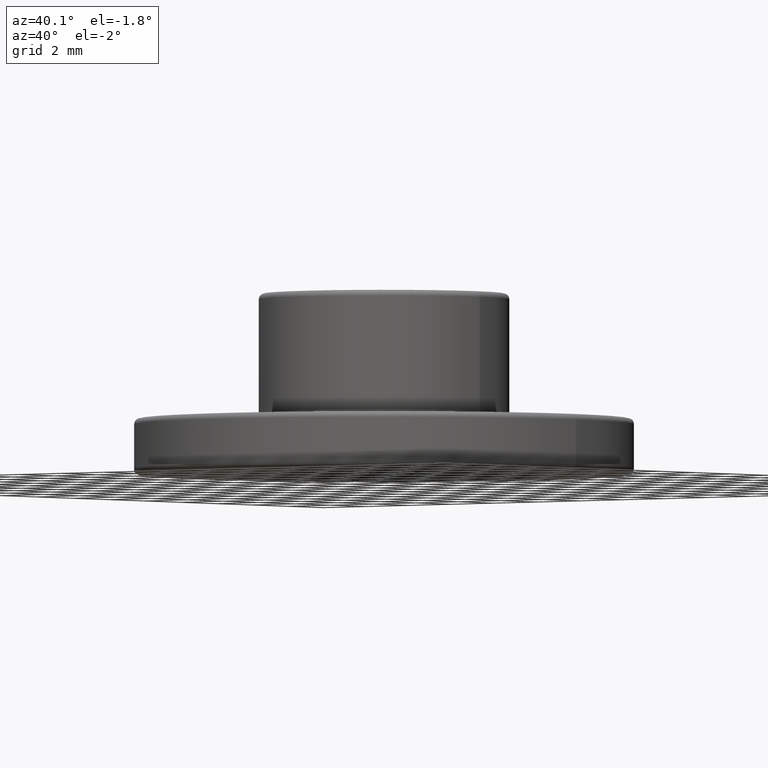
[diagram: clean part render]
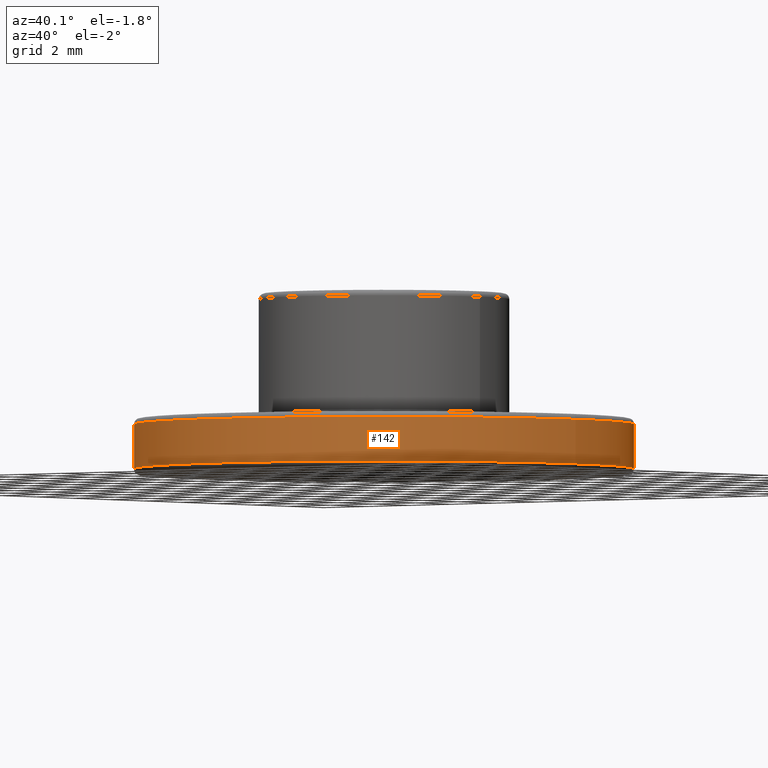
[diagram: same view with one face highlighted and labeled with its STEP entity id]
A machine part, auxiliary view. The second image highlights one B-rep face of the part: STEP entity #142.
In plain terms, the highlighted cylindrical surface (bore or boss wall) has radius 9 mm, axis along (0, 0, -1).
Its self-contained STEP definition (entity closure, byte-faithful):
#17=CYLINDRICAL_SURFACE('',#165,9.);
#28=FACE_BOUND('',#60,.T.);
#40=FACE_OUTER_BOUND('',#59,.T.);
#59=EDGE_LOOP('',(#119));
#60=EDGE_LOOP('',(#120));
#77=CIRCLE('',#164,9.);
#78=CIRCLE('',#166,9.);
#89=VERTEX_POINT('',#247);
#90=VERTEX_POINT('',#250);
#101=EDGE_CURVE('',#89,#89,#77,.T.);
#102=EDGE_CURVE('',#90,#90,#78,.T.);
#119=ORIENTED_EDGE('',*,*,#102,.F.);
#120=ORIENTED_EDGE('',*,*,#101,.F.);
#142=ADVANCED_FACE('',(#40,#28),#17,.T.);
#164=AXIS2_PLACEMENT_3D('',#248,#205,#206);
#165=AXIS2_PLACEMENT_3D('',#249,#207,#208);
#166=AXIS2_PLACEMENT_3D('',#251,#209,#210);
#205=DIRECTION('center_axis',(0.,0.,-1.));
#206=DIRECTION('ref_axis',(-1.,0.,0.));
#207=DIRECTION('center_axis',(0.,0.,-1.));
#208=DIRECTION('ref_axis',(-1.,0.,0.));
#209=DIRECTION('center_axis',(0.,0.,1.));
#210=DIRECTION('ref_axis',(-1.,0.,0.));
#247=CARTESIAN_POINT('',(9.,-1.10218211923262E-15,-1.8));
#248=CARTESIAN_POINT('Origin',(0.,0.,-1.8));
#249=CARTESIAN_POINT('Origin',(0.,0.,0.));
#250=CARTESIAN_POINT('',(9.,1.10218211923262E-15,-0.2));
#251=CARTESIAN_POINT('Origin',(0.,0.,-0.2));